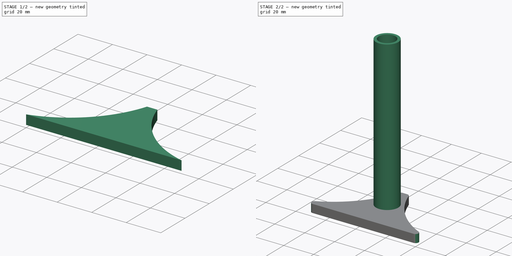
[diagram: build sequence overview — one tinted view per stage of 2, left to right]
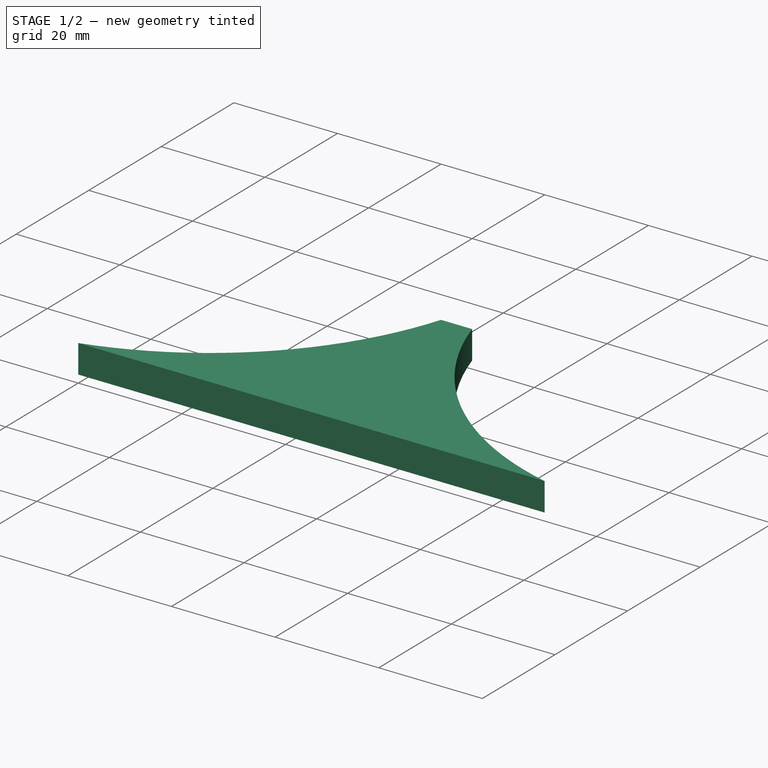
[diagram: stage 1 of 2 — iso view after this stage's code; geometry added in this stage tinted green]
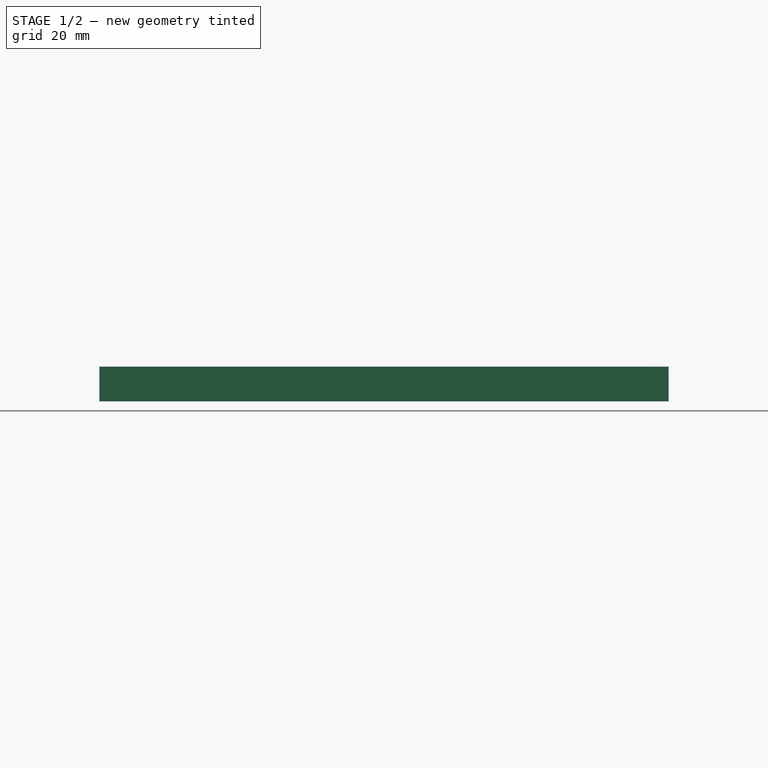
[diagram: stage 1 of 2 — front view after this stage's code; geometry added in this stage tinted green]
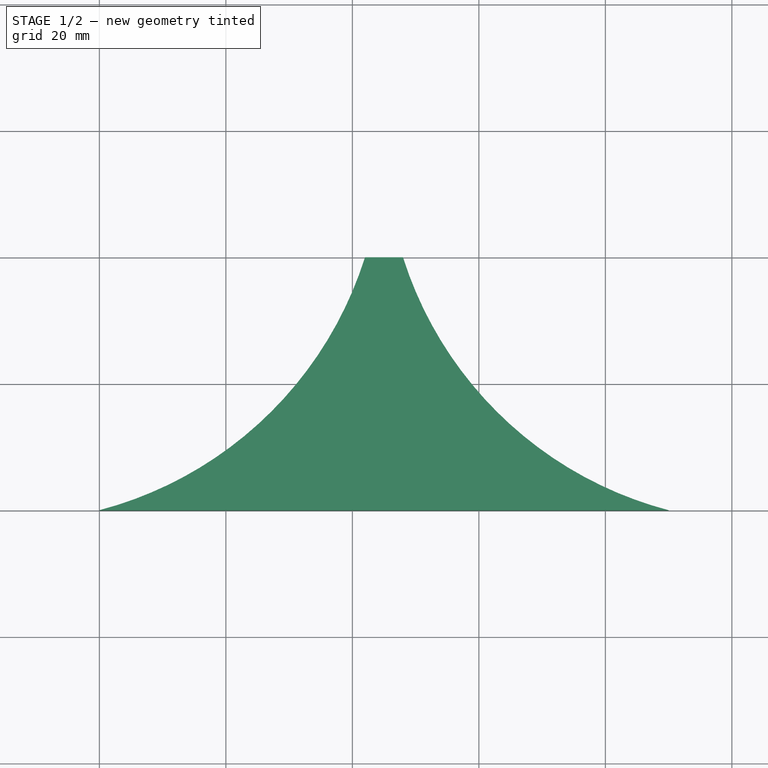
[diagram: stage 1 of 2 — top view after this stage's code; geometry added in this stage tinted green]
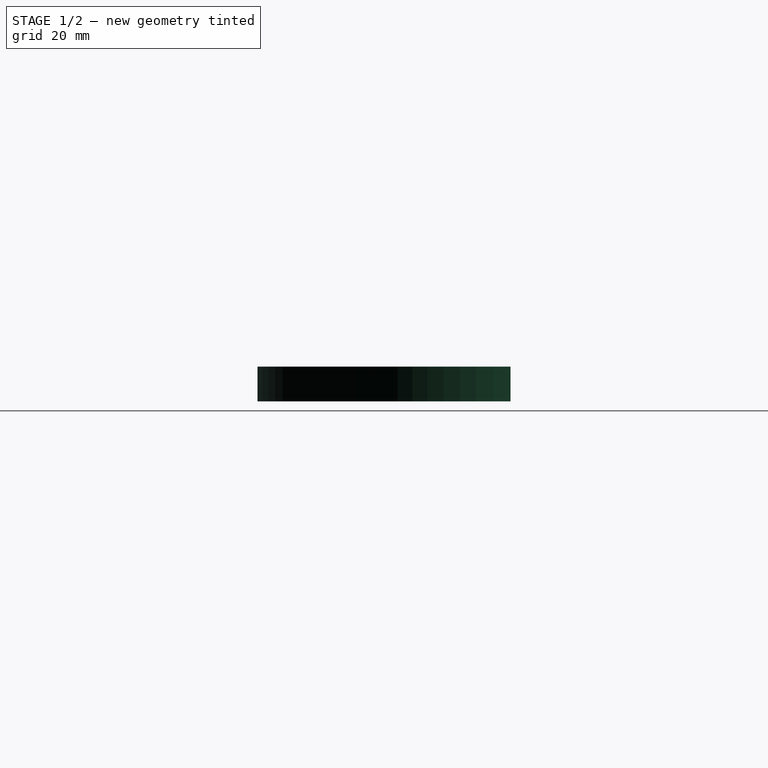
[diagram: stage 1 of 2 — right view after this stage's code; geometry added in this stage tinted green]
FCSTD DOCUMENT  (FreeCAD 0.19R24267 +99 (Git))
Label: fan-mount
License: All rights reserved
LicenseURL: http://en.wikipedia.org/wiki/All_rights_reserved
objects: Sketcher::SketchObject×3, PartDesign::Pad×3, PartDesign::Body×2, PartDesign::Fillet×1
note: 13 computed .brp shape members not serialized (recipe doc carries the construction recipe); baked Part::Feature solids carry a one-line shape summary decoded from their .brp

FEATURE [Sketcher::SketchObject] Sketch
  FullyConstrained = true
  MapMode = 5
  Support = -> [XY_Plane]
  sketch-geometry (9):
    g0: LineSegment StartX=90 StartY=-7.1e-15 StartZ=0 EndX=1.42e-14 EndY=0 EndZ=0
    g1: ArcOfCircle CenterX=-15.225 CenterY=58.0362 CenterZ=0 NormalX=0 NormalY=0 NormalZ=1 AngleXU=0 Radius=60 StartAngle=4.96894 EndAngle=5.97786
    g2: LineSegment StartX=42 StartY=40 StartZ=0 EndX=48 EndY=40 EndZ=0
    g3: ArcOfCircle CenterX=105.225 CenterY=58.0362 CenterZ=0 NormalX=0 NormalY=0 NormalZ=1 AngleXU=0 Radius=60 StartAngle=3.44692 EndAngle=4.45583
    g4: Circle CenterX=39.5 CenterY=24 CenterZ=0 NormalX=0 NormalY=0 NormalZ=1 AngleXU=0 Radius=3.5
    g5: Circle CenterX=50.5 CenterY=24 CenterZ=0 NormalX=0 NormalY=0 NormalZ=1 AngleXU=0 Radius=3.5
    g6: LineSegment StartX=45 StartY=0 StartZ=0 EndX=45 EndY=40 EndZ=0
    g7: Circle CenterX=20 CenterY=4 CenterZ=0 NormalX=0 NormalY=0 NormalZ=1 AngleXU=0 Radius=3.5
    g8: Circle CenterX=70 CenterY=4 CenterZ=0 NormalX=0 NormalY=0 NormalZ=1 AngleXU=0 Radius=3.5
  constraints (25):
    c: PointOnObject(g0,g-1)
    c: Coincident(g0,g-1)
    c: Coincident(g1,g0)
    c: Coincident(g2,g1)
    c: Coincident(g3,g2)
    c: Diameter(g1) = 120
    c: Equal(g3,g1)
    c: DistanceX(g2,g2) = 6
    c: DistanceY(g3,g2) = 40
    c: DistanceX(g0,g3) = 90
    c: Diameter(g4) = 7
    c: Equal(g4,g5)
    c: DistanceX(g4,g5) = 11
    c: DistanceY(g4,g1) = 16
    c: Symmetric(g5,g4,g6)
    c: Equal(g7,g8)
    c: Equal(g8,g4)
    c: DistanceX(g7,g8) = 50
    c: DistanceY(g0,g7) = 4
    c: PointOnObject(g6,g2)
    c: Symmetric(g2,g1,g6)
    c: PointOnObject(g6,g-1)
    c: Symmetric(g3,g0,g6)
    c: Symmetric(g8,g7,g6)
    c: Coincident(g0,g3)
FEATURE [PartDesign::Pad] Pad
  Direction = (1,1,1)
  Length = 4
  Length2 = 100
  Profile = -> Sketch
  Type = 0
FEATURE [PartDesign::Body] Body001
  Group = -> [Sketch001,Pad001]
  Origin = -> Origin001
  Tip = -> Pad001
FEATURE [Sketcher::SketchObject] Sketch002
  AttachmentOffset = pos=(0,0,4) rot=(0,0,1;0rad)
  FullyConstrained = true
  MapMode = 5
  Placement = pos=(0,0,4) rot=(0,0,1;0rad)
  Support = -> [XY_Plane]
  expr: .AttachmentOffset.Base.z = <<Pad>>.Length
  sketch-geometry (5):
    g0: LineSegment StartX=90 StartY=-7.1e-15 StartZ=0 EndX=1.42e-14 EndY=0 EndZ=0
    g1: ArcOfCircle CenterX=-15.225 CenterY=58.0362 CenterZ=0 NormalX=0 NormalY=0 NormalZ=1 AngleXU=0 Radius=60 StartAngle=4.96894 EndAngle=5.97786
    g2: LineSegment StartX=42 StartY=40 StartZ=0 EndX=48 EndY=40 EndZ=0
    g3: ArcOfCircle CenterX=105.225 CenterY=58.0362 CenterZ=0 NormalX=0 NormalY=0 NormalZ=1 AngleXU=0 Radius=60 StartAngle=3.44692 EndAngle=4.45583
    g4: LineSegment StartX=45 StartY=0 StartZ=0 EndX=45 EndY=40 EndZ=0
  constraints (15):
    c: PointOnObject(g0,g-1)
    c: Coincident(g0,g-1)
    c: Coincident(g1,g0)
    c: Coincident(g2,g1)
    c: Coincident(g3,g2)
    c: Diameter(g1) = 120
    c: Equal(g3,g1)
    c: DistanceX(g2,g2) = 6
    c: DistanceY(g3,g2) = 40
    c: DistanceX(g0,g3) = 90
    c: PointOnObject(g4,g2)
    c: Symmetric(g2,g1,g4)
    c: PointOnObject(g4,g-1)
    c: Symmetric(g3,g0,g4)
    c: Coincident(g0,g3)
FEATURE [PartDesign::Pad] Pad002
  BaseFeature = -> Pad
  Direction = (1,1,1)
  Length = 1.5
  Length2 = 100
  Profile = -> Sketch002
  Type = 0
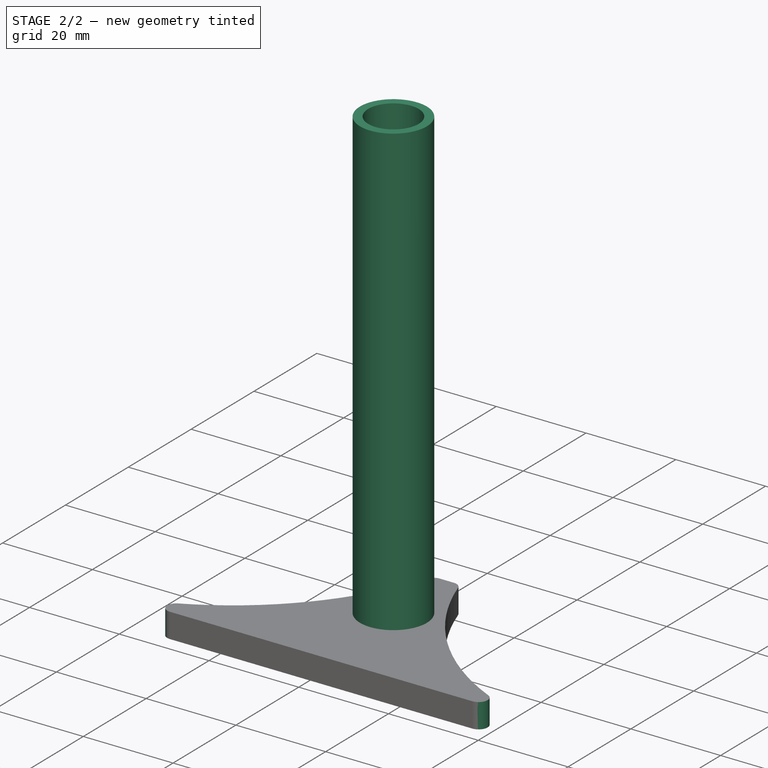
[diagram: stage 2 of 2 — iso view after this stage's code; geometry added in this stage tinted green]
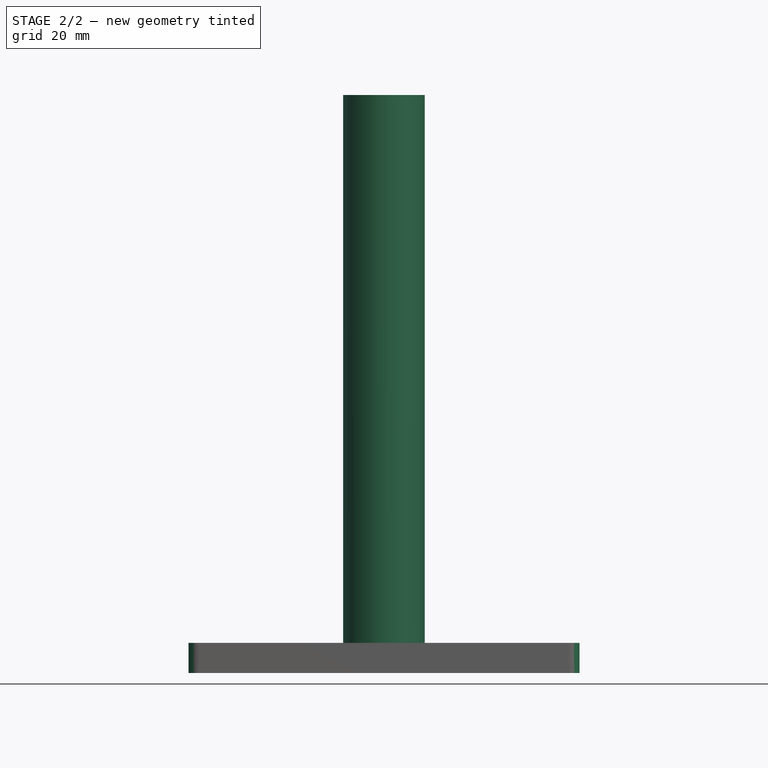
[diagram: stage 2 of 2 — front view after this stage's code; geometry added in this stage tinted green]
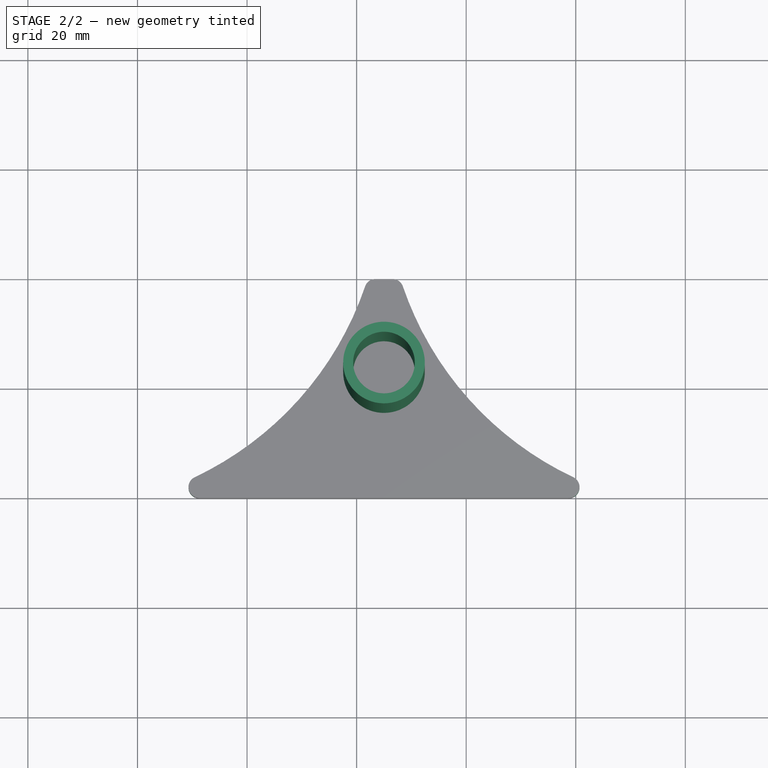
[diagram: stage 2 of 2 — top view after this stage's code; geometry added in this stage tinted green]
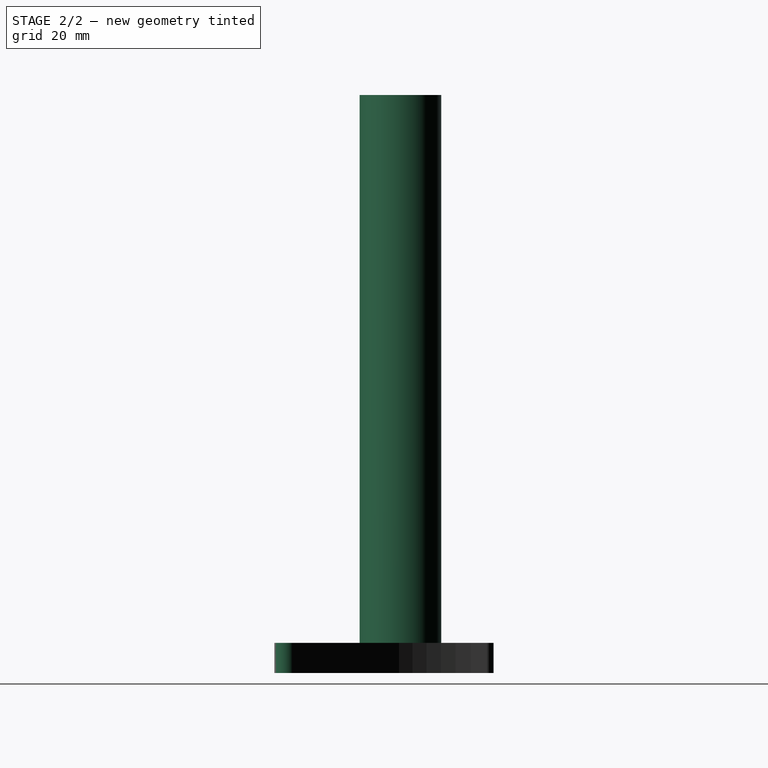
[diagram: stage 2 of 2 — right view after this stage's code; geometry added in this stage tinted green]
FEATURE [Sketcher::SketchObject] Sketch001
  AttachmentOffset = pos=(0,0,5.5) rot=(0,0,1;0rad)
  FullyConstrained = true
  MapMode = 5
  Placement = pos=(0,0,5.5) rot=(0,0,1;0rad)
  Support = -> [XY_Plane001]
  expr: .AttachmentOffset.Base.z = <<Pad>>.Length + <<Pad002>>.Length
  sketch-geometry (2):
    g0: Circle CenterX=45 CenterY=23 CenterZ=0 NormalX=0 NormalY=0 NormalZ=1 AngleXU=0 Radius=7.45
    g1: Circle CenterX=45 CenterY=23 CenterZ=0 NormalX=0 NormalY=0 NormalZ=1 AngleXU=0 Radius=5.625
  constraints (5):
    c: Diameter(g0) = 14.9
    c: Coincident(g1,g0)
    c: Diameter(g1) = 11.25
    c: DistanceX(g-1,g0) = 45
    c: DistanceY(g-1,g0) = 23
FEATURE [PartDesign::Pad] Pad001
  Direction = (1,1,1)
  Length = 100
  Length2 = 100
  Profile = -> Sketch001
  Type = 0
FEATURE [PartDesign::Fillet] Fillet
  Base = -> Pad002 [Edge2,Edge17,Edge16,Edge1,Edge20,Edge5,Edge22,Edge8]
  BaseFeature = -> Pad002
  Radius = 2
  SupportTransform = false
FEATURE [PartDesign::Body] Body
  Group = -> [Sketch,Pad,Sketch002,Pad002,Fillet]
  Origin = -> Origin
  Tip = -> Fillet
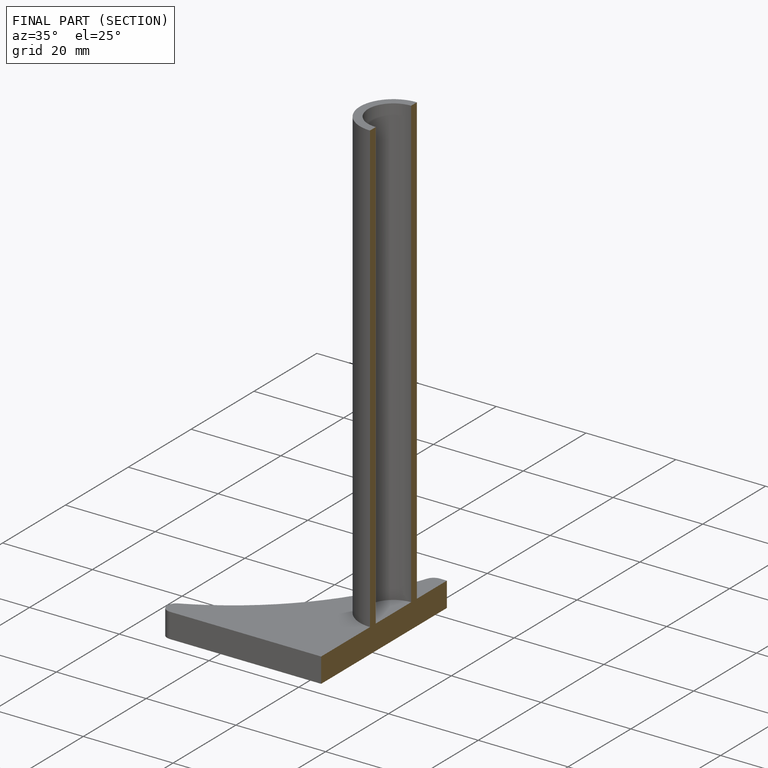
[diagram: finished part — half-section view (interior)]
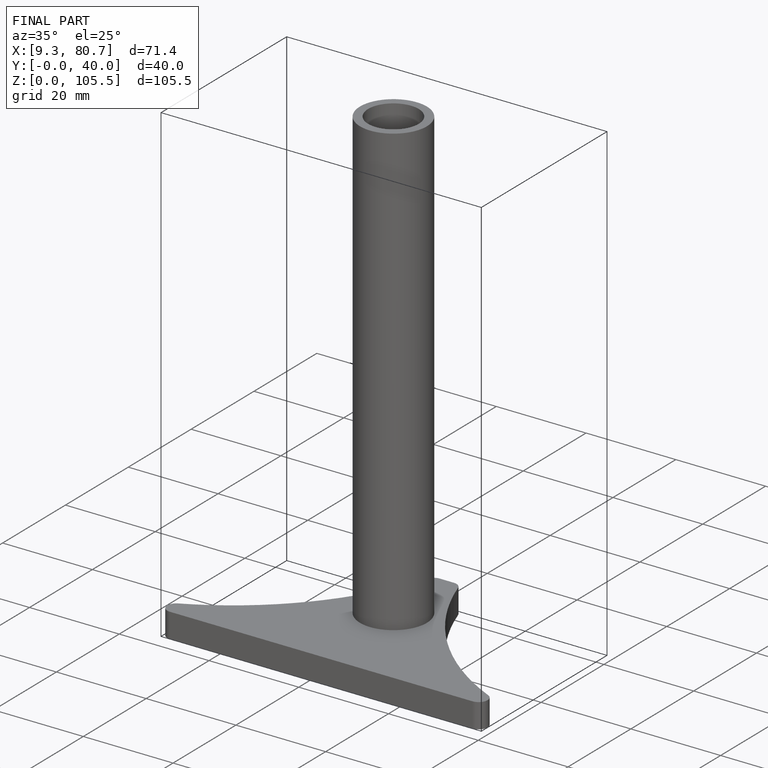
[diagram: finished part — iso view with bounding-box wireframe]
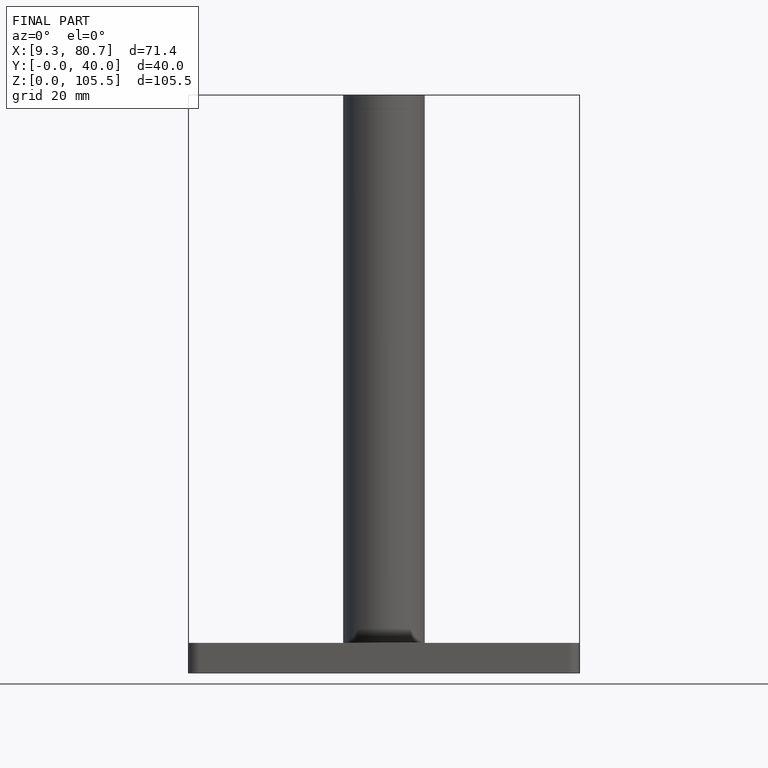
[diagram: finished part — front view with bounding-box wireframe]
